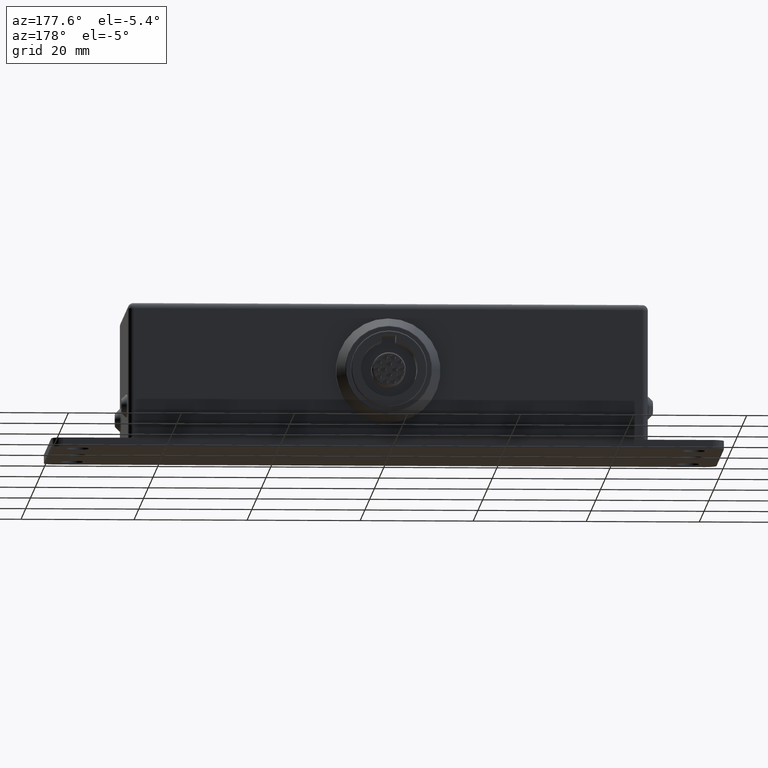
[diagram: clean part render]
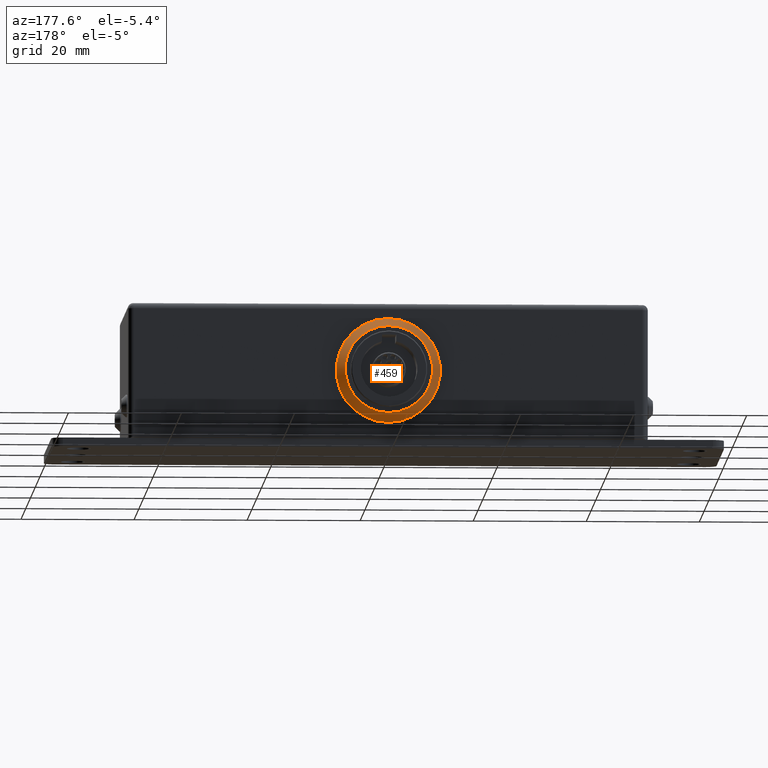
[diagram: same view with one face highlighted and labeled with its STEP entity id]
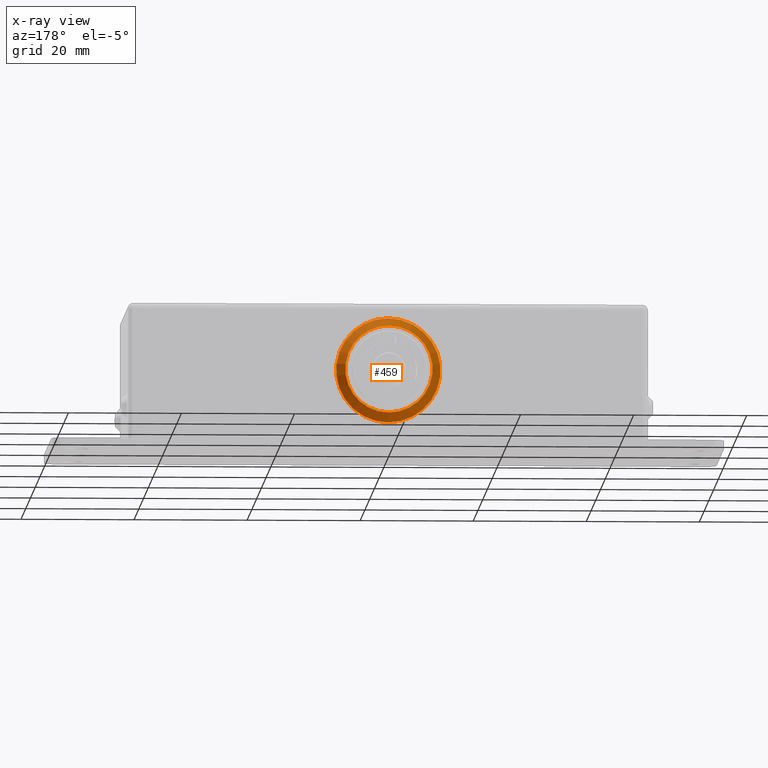
[diagram: x-ray of the same camera — body ghosted, the highlighted face saturated]
A machine part, auxiliary view. The second image highlights one B-rep face of the part: STEP entity #459.
The next image is the same camera in x-ray: the body ghosted, the highlighted face saturated — about 0% of this face is hidden behind the body in this view.
In plain terms, the highlighted conical surface has half-angle 30 deg.
Its self-contained STEP definition (entity closure, byte-faithful):
#459 = ADVANCED_FACE( '', ( #1200, #1201 ), #1202, .T. );
#1200 = FACE_BOUND( '', #2321, .T. );
#1201 = FACE_OUTER_BOUND( '', #2322, .T. );
#1202 = CONICAL_SURFACE( '', #2323, 9.25000000000009, 0.523598775598343 );
#2321 = EDGE_LOOP( '', ( #3711 ) );
#2322 = EDGE_LOOP( '', ( #3712 ) );
#2323 = AXIS2_PLACEMENT_3D( '', #3713, #3714, #3715 );
#3711 = ORIENTED_EDGE( '', *, *, #6165, .T. );
#3712 = ORIENTED_EDGE( '', *, *, #6064, .T. );
#3713 = CARTESIAN_POINT( '', ( 0.000000000000000, 18.7500000000000, -12.0000000000000 ) );
#3714 = DIRECTION( '', ( 0.000000000000000, -1.00000000000000, -0.000000000000000 ) );
#3715 = DIRECTION( '', ( 0.000000000000000, 0.000000000000000, -1.00000000000000 ) );
#6064 = EDGE_CURVE( '', #7196, #7196, #7197, .T. );
#6165 = EDGE_CURVE( '', #7367, #7367, #7368, .F. );
#7196 = VERTEX_POINT( '', #8766 );
#7197 = CIRCLE( '', #8767, 9.22320508075698 );
#7367 = VERTEX_POINT( '', #8990 );
#7368 = CIRCLE( '', #8991, 7.72002178664742 );
#8766 = CARTESIAN_POINT( '', ( 0.000000000000000, 18.7964101615138, -2.77679491924302 ) );
#8767 = AXIS2_PLACEMENT_3D( '', #10573, #10574, #10575 );
#8990 = CARTESIAN_POINT( '', ( 0.000000000000000, 21.4000000000000, -4.27997821335258 ) );
#8991 = AXIS2_PLACEMENT_3D( '', #10704, #10705, #10706 );
#10573 = CARTESIAN_POINT( '', ( 0.000000000000000, 18.7964101615138, -12.0000000000000 ) );
#10574 = DIRECTION( '', ( -0.000000000000000, 1.00000000000000, 0.000000000000000 ) );
#10575 = DIRECTION( '', ( 0.000000000000000, 0.000000000000000, 1.00000000000000 ) );
#10704 = CARTESIAN_POINT( '', ( 0.000000000000000, 21.4000000000000, -12.0000000000000 ) );
#10705 = DIRECTION( '', ( -0.000000000000000, 1.00000000000000, 0.000000000000000 ) );
#10706 = DIRECTION( '', ( 0.000000000000000, 0.000000000000000, 1.00000000000000 ) );